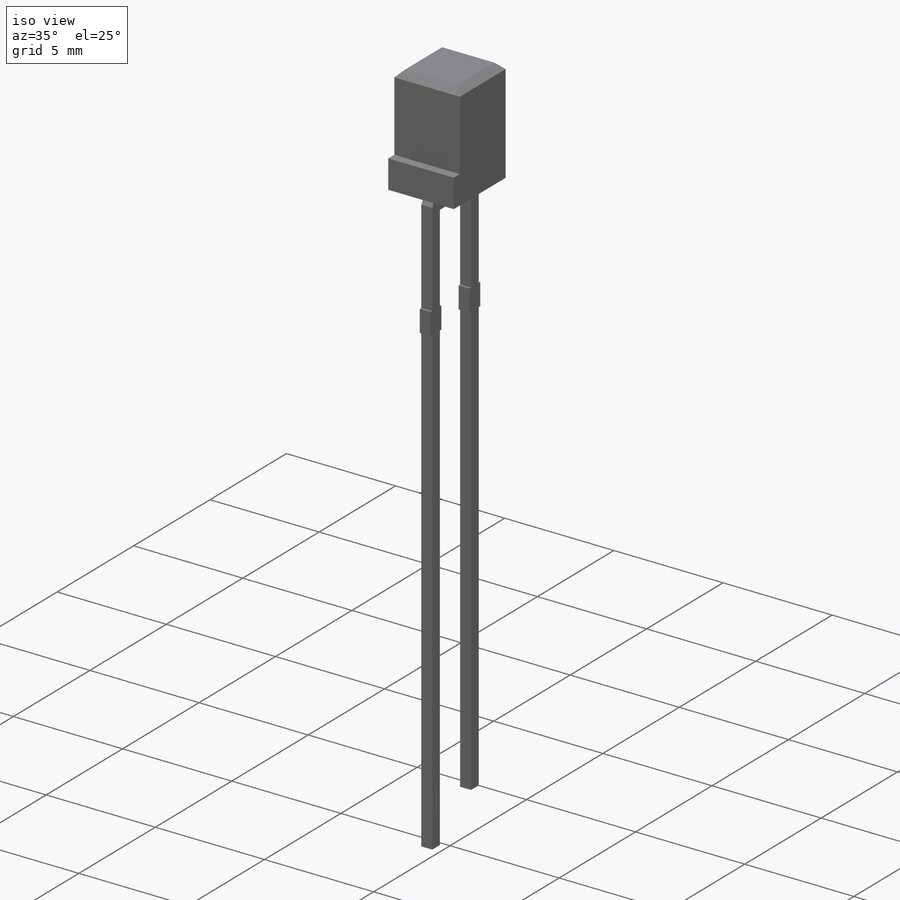
[diagram: iso view]
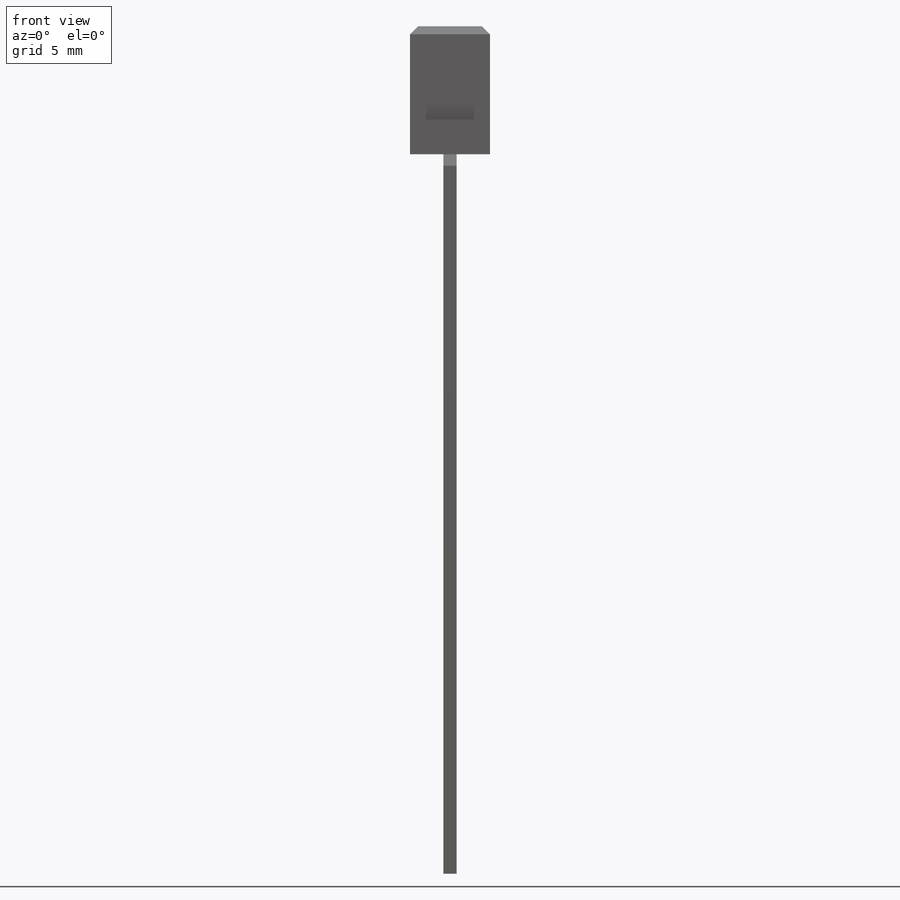
[diagram: front view]
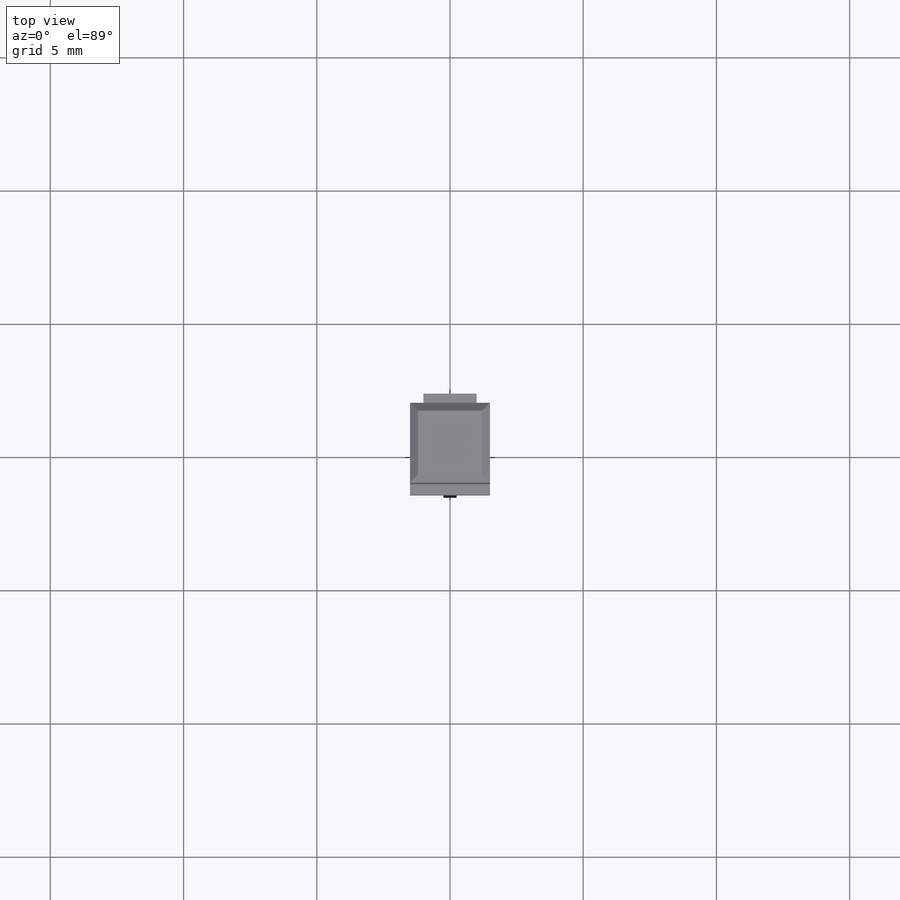
[diagram: top view]
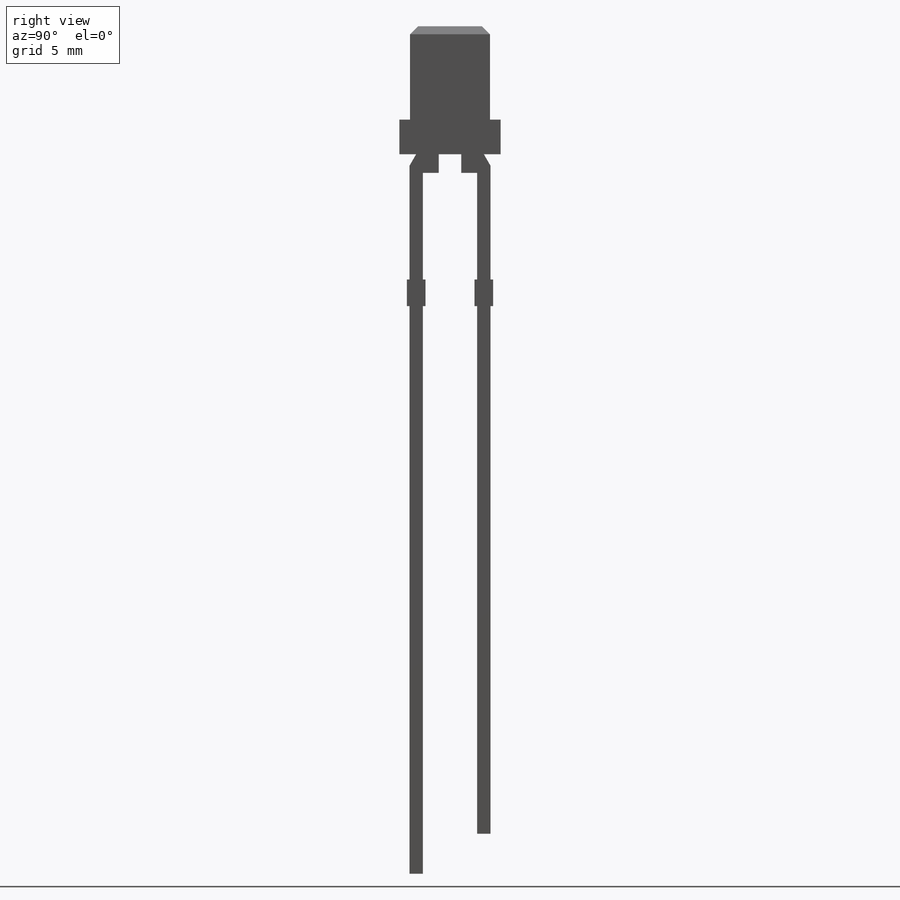
[diagram: right view]
SOLIDWORKS PART (.sldprt)
format: sldprt  version: not decoded by parser v0  size: 477,696 bytes
history: native  units: mm
features: sketch x4, extrude x3, material x1, cut_extrude x1, chamfer x1 (+11 scaffold rows collapsed)
feature tree (21):
  scaffold x11  (default folders/planes/origin — collapsed)
  material  "Material <not specified>"
  sketch  "Sketch2"  dims[D1=0.5mm D2=0.7mm D3=1.0mm D4=0.6mm D5=3.0mm D6=3.8mm D7=1.3mm D8=60.0deg D9=2.54mm D10=27.0mm D11=1.5mm D12=4.8mm D13=5.5mm D14=9.5mm]
  extrude  "Extrude1"  Depth=3mm
  extrude  "Extrude2"  [1 undecoded]
  sketch  "Sketch2<3>"  dims[D1=2.0mm]
  extrude  "Extrude3"  [1 undecoded]
  sketch  "Sketch2<4>"  dims[D1=0.5mm]
  sketch  "Sketch3"
  cut_extrude  "Cut-Extrude1"  Depth=0.01mm
  chamfer  "Chamfer1"  Distance=0.3mm Angle=45deg
decode coverage: 6 of 9 modeling features carry decoded parameters
note: 2 parameter values undecoded
note: suppression state not decoded; provenance and decode notes live in map.json
